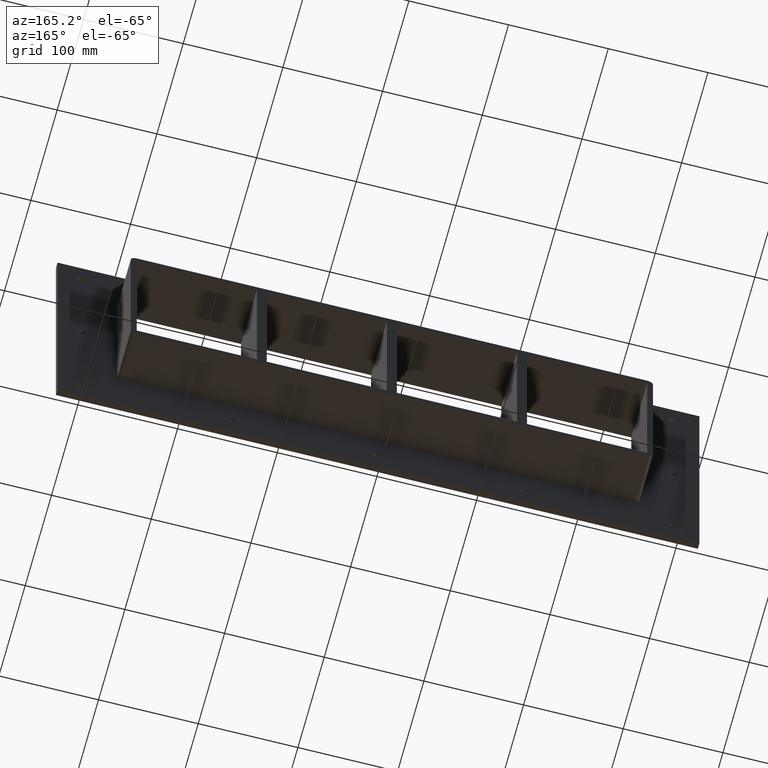
[diagram: clean part render]
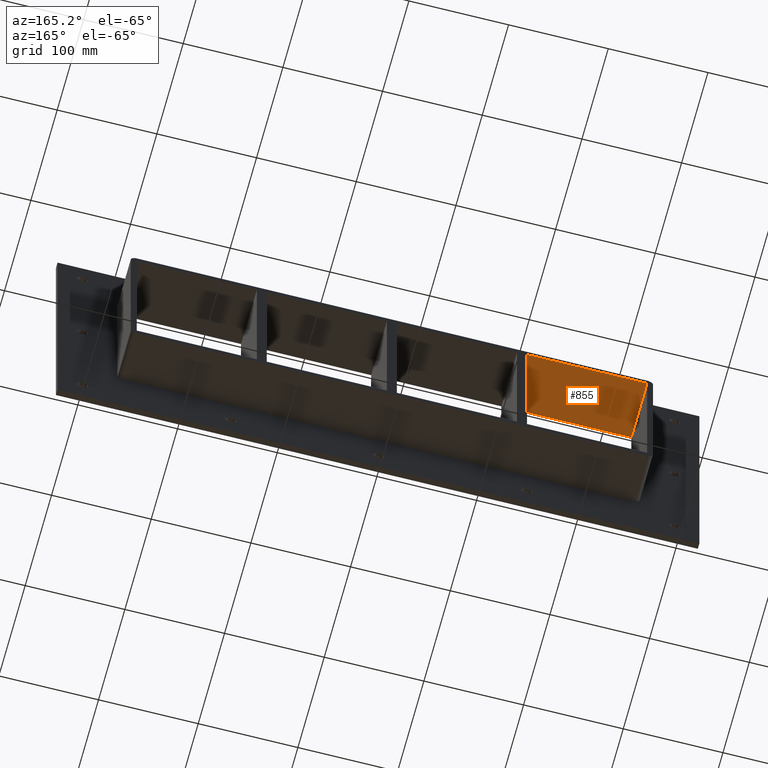
[diagram: same view with one face highlighted and labeled with its STEP entity id]
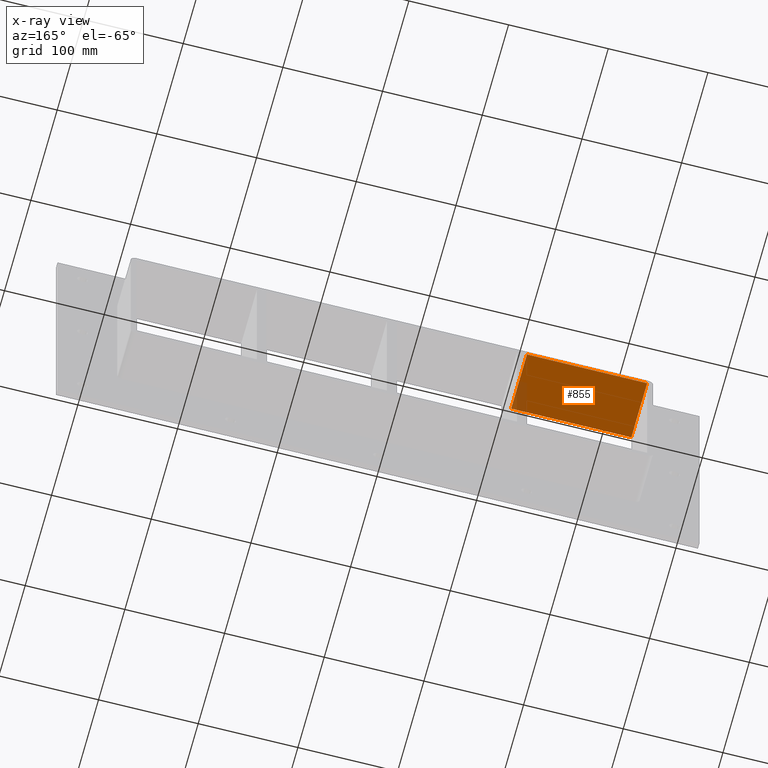
[diagram: x-ray of the same camera — body ghosted, the highlighted face saturated]
A machine part, auxiliary view. The second image highlights one B-rep face of the part: STEP entity #855.
The next image is the same camera in x-ray: the body ghosted, the highlighted face saturated — about 5% of this face is hidden behind the body in this view.
In plain terms, the highlighted planar face has unit normal (0, 0, 1).
Its self-contained STEP definition (entity closure, byte-faithful):
#739=CARTESIAN_POINT('',(-135.5000000000021,-3.0,79.750000000000014));
#740=VERTEX_POINT('',#739);
#747=CARTESIAN_POINT('',(-135.5000000000021,57.0,79.750000000000014));
#748=VERTEX_POINT('',#747);
#749=CARTESIAN_POINT('',(-135.5000000000021,57.000000000000007,79.750000000000014));
#750=DIRECTION('',(0.0,-1.0,0.0));
#751=VECTOR('',#750,60.000000000000007);
#752=LINE('',#749,#751);
#753=EDGE_CURVE('',#748,#740,#752,.T.);
#825=CARTESIAN_POINT('',(-256.00000000000006,0.0,79.750000000000014));
#826=DIRECTION('',(0.0,0.0,1.0));
#827=DIRECTION('',(1.0,0.0,0.0));
#828=AXIS2_PLACEMENT_3D('',#825,#826,#827);
#829=PLANE('',#828);
#830=ORIENTED_EDGE('',*,*,#753,.T.);
#831=CARTESIAN_POINT('',(-256.00000000000006,-3.0,79.750000000000014));
#832=VERTEX_POINT('',#831);
#833=CARTESIAN_POINT('',(-256.00000000000006,-3.0,79.750000000000014));
#834=DIRECTION('',(1.0,0.0,0.0));
#835=VECTOR('',#834,120.49999999999795);
#836=LINE('',#833,#835);
#837=EDGE_CURVE('',#832,#740,#836,.T.);
#838=ORIENTED_EDGE('',*,*,#837,.F.);
#839=CARTESIAN_POINT('',(-256.00000000000006,57.0,79.750000000000014));
#840=VERTEX_POINT('',#839);
#841=CARTESIAN_POINT('',(-256.00000000000006,-3.0,79.750000000000014));
#842=DIRECTION('',(0.0,1.0,0.0));
#843=VECTOR('',#842,60.0);
#844=LINE('',#841,#843);
#845=EDGE_CURVE('',#832,#840,#844,.T.);
#846=ORIENTED_EDGE('',*,*,#845,.T.);
#847=CARTESIAN_POINT('',(-135.5000000000021,57.0,79.750000000000014));
#848=DIRECTION('',(-1.0,0.0,0.0));
#849=VECTOR('',#848,120.49999999999795);
#850=LINE('',#847,#849);
#851=EDGE_CURVE('',#748,#840,#850,.T.);
#852=ORIENTED_EDGE('',*,*,#851,.F.);
#853=EDGE_LOOP('',(#830,#838,#846,#852));
#854=FACE_OUTER_BOUND('',#853,.T.);
#855=ADVANCED_FACE('',(#854),#829,.F.);